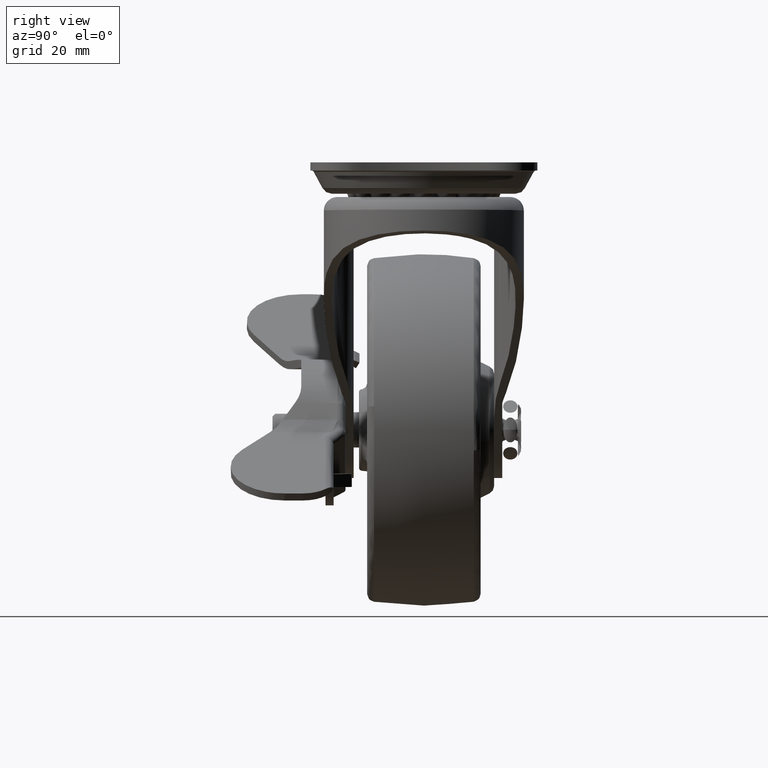
[diagram: clean part render]
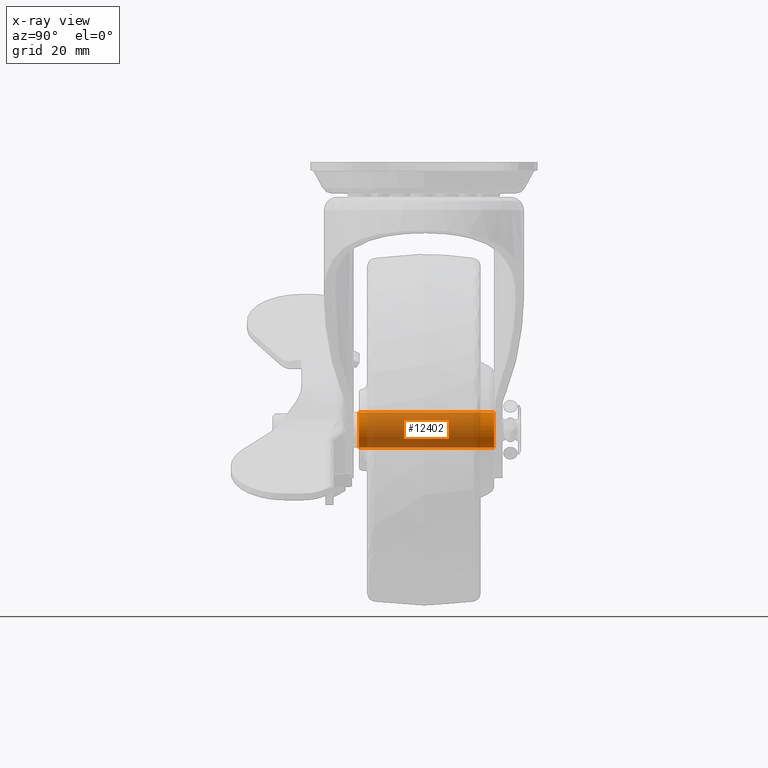
[diagram: x-ray — body ghosted, one internal face saturated and labeled with its STEP entity id]
A machine part, right view, then the same camera in x-ray: the body is ghosted and one INTERNAL B-rep face — a face not visible from any outside direction — is saturated and labeled: STEP entity #12402.
In plain terms, the highlighted face is a freeform B-spline surface patch.
Its self-contained STEP definition (entity closure, byte-faithful):
#12257=CARTESIAN_POINT('',(-26.481555839556510,13.625000000000007,-50.098657624741584));
#12258=CARTESIAN_POINT('',(-26.421493045502420,13.625000000000002,-50.169678686721184));
#12259=CARTESIAN_POINT('',(-26.357466705789928,13.625000000000000,-50.237148371004700));
#12260=CARTESIAN_POINT('',(-24.120314334785231,13.625000000000002,-52.594615076794632));
#12261=CARTESIAN_POINT('',(-21.762847628995299,13.625000000000000,-50.357462705789942));
#12262=CARTESIAN_POINT('',(-19.405380923205364,13.625000000000002,-48.120310334785238));
#12263=CARTESIAN_POINT('',(-21.642533294210072,13.625000000000000,-45.762843628995313));
#12264=CARTESIAN_POINT('',(-23.879685665214758,13.625000000000002,-43.405376923205367));
#12265=CARTESIAN_POINT('',(-26.237152371004701,13.625000000000000,-45.642529294210071));
#12266=CARTESIAN_POINT('',(-26.481555839556510,-12.640625000000000,-50.098657624741584));
#12267=CARTESIAN_POINT('',(-26.421493045502420,-12.640625000000002,-50.169678686721184));
#12268=CARTESIAN_POINT('',(-26.357466705789928,-12.640625000000000,-50.237148371004700));
#12269=CARTESIAN_POINT('',(-24.120314334785231,-12.640625000000000,-52.594615076794632));
#12270=CARTESIAN_POINT('',(-21.762847628995299,-12.640625000000000,-50.357462705789942));
#12271=CARTESIAN_POINT('',(-19.405380923205364,-12.640625000000000,-48.120310334785238));
#12272=CARTESIAN_POINT('',(-21.642533294210072,-12.640625000000000,-45.762843628995313));
#12273=CARTESIAN_POINT('',(-23.879685665214758,-12.640625000000000,-43.405376923205367));
#12274=CARTESIAN_POINT('',(-26.237152371004701,-12.640625000000000,-45.642529294210071));
#12282=(BOUNDED_SURFACE()B_SPLINE_SURFACE(2,1,((#12257,#12266),(#12258,#12267),(#12259,#12268),(#12260,#12269),(#12261,#12270),(#12262,#12271),(#12263,#12272),(#12264,#12273),(#12265,#12274)),.UNSPECIFIED.,.F.,.F.,.U.)B_SPLINE_SURFACE_WITH_KNOTS((3,2,2,2,3),(2,2),(0.0,0.215391052434010,5.600167363284247,10.984943674134490,16.369719984984719),(0.0,26.265625000000011),.UNSPECIFIED.)GEOMETRIC_REPRESENTATION_ITEM()RATIONAL_B_SPLINE_SURFACE(((0.977505800795127,0.977505800795127),(0.988284271247462,0.988284271247462),(1.0,1.0),(0.707106781186548,0.707106781186548),(1.0,1.0),(0.707106781186548,0.707106781186548),(1.0,1.0),(0.707106781186548,0.707106781186548),(1.0,1.0)))REPRESENTATION_ITEM('')SURFACE());
#12283=CARTESIAN_POINT('',(-26.481556285946748,13.000000000002050,-50.098657887644620));
#12284=VERTEX_POINT('',#12283);
#12285=CARTESIAN_POINT('',(-24.0,13.0,-51.249996000000102));
#12286=VERTEX_POINT('',#12285);
#12287=CARTESIAN_POINT('',(-26.481556285946748,13.000000000002050,-50.098657887644620));
#12288=CARTESIAN_POINT('',(-26.234824559526182,13.000000000001830,-50.390823503948837));
#12289=CARTESIAN_POINT('',(-25.751687619251712,13.000000000001471,-50.790870470828303));
#12290=CARTESIAN_POINT('',(-24.882290786734551,13.000000000000689,-51.165810737911627));
#12291=CARTESIAN_POINT('',(-24.323558798059778,13.000000000000270,-51.250151274976567));
#12292=CARTESIAN_POINT('',(-24.0,13.0,-51.249996000000102));
#12293=B_SPLINE_CURVE_WITH_KNOTS('',3,(#12287,#12288,#12289,#12290,#12291,#12292),.UNSPECIFIED.,.F.,.U.,(4,1,1,4),(0.000000054423343,1.147109767786408,1.852996211808536,2.823627262613000),.UNSPECIFIED.);
#12294=EDGE_CURVE('',#12284,#12286,#12293,.T.);
#12295=ORIENTED_EDGE('',*,*,#12294,.F.);
#12296=CARTESIAN_POINT('',(-26.481556285255721,-12.0,-50.098657888461673));
#12297=VERTEX_POINT('',#12296);
#12298=CARTESIAN_POINT('',(-26.481556285946748,13.000000000002050,-50.098657887644620));
#12299=CARTESIAN_POINT('',(-26.481556285255721,-12.0,-50.098657888461673));
#12300=QUASI_UNIFORM_CURVE('',1,(#12298,#12299),.UNSPECIFIED.,.F.,.U.);
#12301=EDGE_CURVE('',#12284,#12297,#12300,.T.);
#12302=ORIENTED_EDGE('',*,*,#12301,.T.);
#12303=CARTESIAN_POINT('',(-24.0,-12.0,-51.249996000000003));
#12304=VERTEX_POINT('',#12303);
#12305=CARTESIAN_POINT('',(-26.481556285255721,-12.0,-50.098657888461673));
#12306=CARTESIAN_POINT('',(-26.196994702160250,-12.000000000000030,-50.435937924643127));
#12307=CARTESIAN_POINT('',(-25.641381200740600,-11.999999999999980,-50.870703685043807));
#12308=CARTESIAN_POINT('',(-24.749986543510360,-12.000000000000011,-51.192000824857097));
#12309=CARTESIAN_POINT('',(-24.250010752007089,-11.999999999999989,-51.250047392190829));
#12310=CARTESIAN_POINT('',(-24.0,-12.0,-51.249996000000003));
#12311=B_SPLINE_CURVE_WITH_KNOTS('',3,(#12305,#12306,#12307,#12308,#12309,#12310),.UNSPECIFIED.,.F.,.U.,(4,1,1,4),(0.000000054424649,1.323581554199689,2.073600947817505,2.823627261542827),.UNSPECIFIED.);
#12312=EDGE_CURVE('',#12297,#12304,#12311,.T.);
#12313=ORIENTED_EDGE('',*,*,#12312,.T.);
#12314=CARTESIAN_POINT('',(-20.750000000000661,-12.0,-47.999993928805957));
#12315=VERTEX_POINT('',#12314);
#12316=CARTESIAN_POINT('',(-24.0,-12.0,-51.249996000000003));
#12317=CARTESIAN_POINT('',(-23.654320774673671,-12.000000000000020,-51.250179115008287));
#12318=CARTESIAN_POINT('',(-23.096070509166420,-11.999999999999970,-51.160053976388241));
#12319=CARTESIAN_POINT('',(-22.436602563006169,-12.000000000000030,-50.867636865759899));
#12320=CARTESIAN_POINT('',(-21.948912333431920,-11.999999999999959,-50.541772893779388));
#12321=CARTESIAN_POINT('',(-21.484482496297741,-12.000000000000069,-50.099670020211917));
#12322=CARTESIAN_POINT('',(-21.052774065843280,-11.999999999999870,-49.453728091141343));
#12323=CARTESIAN_POINT('',(-20.799715858004259,-12.000000000000220,-48.717896997388358));
#12324=CARTESIAN_POINT('',(-20.749982138097359,-11.999999999999821,-48.212695492104409));
#12325=CARTESIAN_POINT('',(-20.750000000000661,-12.0,-47.999993928805957));
#12326=B_SPLINE_CURVE_WITH_KNOTS('',3,(#12316,#12317,#12318,#12319,#12320,#12321,#12322,#12323,#12324,#12325),.UNSPECIFIED.,.F.,.U.,(4,1,1,1,1,1,1,4),(0.000000086991321,1.036990391436234,1.675165644531917,2.153791850093249,2.791894891515630,3.589599017035031,4.467092726175537,5.105217336476702),.UNSPECIFIED.);
#12327=EDGE_CURVE('',#12304,#12315,#12326,.T.);
#12328=ORIENTED_EDGE('',*,*,#12327,.T.);
#12329=CARTESIAN_POINT('',(-24.0,-12.0,-44.749996000000003));
#12330=VERTEX_POINT('',#12329);
#12331=CARTESIAN_POINT('',(-20.750000000000661,-12.0,-47.999993928805957));
#12332=CARTESIAN_POINT('',(-20.749648631418520,-12.0,-47.601095348844218));
#12333=CARTESIAN_POINT('',(-20.854088096085800,-12.000000000000011,-47.042983797080190));
#12334=CARTESIAN_POINT('',(-21.184792626607109,-12.0,-46.344060126032232));
#12335=CARTESIAN_POINT('',(-21.523204617914200,-12.000000000000030,-45.863494637384839));
#12336=CARTESIAN_POINT('',(-22.026282380703240,-11.999999999999970,-45.384468469668292));
#12337=CARTESIAN_POINT('',(-22.600739912557628,-12.000000000000041,-45.040171777657363));
#12338=CARTESIAN_POINT('',(-23.282133407029669,-11.999999999999970,-44.805790072367401));
#12339=CARTESIAN_POINT('',(-23.734111078695509,-12.000000000000020,-44.749931105186512));
#12340=CARTESIAN_POINT('',(-24.0,-12.0,-44.749996000000003));
#12341=B_SPLINE_CURVE_WITH_KNOTS('',3,(#12331,#12332,#12333,#12334,#12335,#12336,#12337,#12338,#12339,#12340),.UNSPECIFIED.,.F.,.U.,(4,1,1,1,1,1,1,4),(0.000000089837820,1.196534105289215,1.675164880495850,2.313321475636653,2.951424224352235,3.749141560874941,4.307545843119534,5.105215001699997),.UNSPECIFIED.);
#12342=EDGE_CURVE('',#12315,#12330,#12341,.T.);
#12343=ORIENTED_EDGE('',*,*,#12342,.T.);
#12344=CARTESIAN_POINT('',(-26.237152120853331,-12.0,-45.642529769683343));
#12345=VERTEX_POINT('',#12344);
#12346=CARTESIAN_POINT('',(-24.0,-12.0,-44.749996000000003));
#12347=CARTESIAN_POINT('',(-24.437013495394631,-12.000000000000011,-44.749520485583247));
#12348=CARTESIAN_POINT('',(-25.259059122995630,-12.000000000000011,-44.918541620766213));
#12349=CARTESIAN_POINT('',(-25.957656481172702,-12.0,-45.376914490278040));
#12350=CARTESIAN_POINT('',(-26.237152120853331,-12.0,-45.642529769683343));
#12351=B_SPLINE_CURVE_WITH_KNOTS('',3,(#12346,#12347,#12348,#12349,#12350),.UNSPECIFIED.,.F.,.U.,(4,1,4),(0.000000029991149,1.310863526457963,2.467517039208516),.UNSPECIFIED.);
#12352=EDGE_CURVE('',#12330,#12345,#12351,.T.);
#12353=ORIENTED_EDGE('',*,*,#12352,.T.);
#12354=CARTESIAN_POINT('',(-26.237152122104661,12.999999999998980,-45.642529770870873));
#12355=VERTEX_POINT('',#12354);
#12356=CARTESIAN_POINT('',(-26.237152122104661,12.999999999998980,-45.642529770870873));
#12357=CARTESIAN_POINT('',(-26.237152120853331,-12.0,-45.642529769683343));
#12358=QUASI_UNIFORM_CURVE('',1,(#12356,#12357),.UNSPECIFIED.,.F.,.U.);
#12359=EDGE_CURVE('',#12355,#12345,#12358,.T.);
#12360=ORIENTED_EDGE('',*,*,#12359,.F.);
#12361=CARTESIAN_POINT('',(-24.0,13.0,-44.749996000000102));
#12362=VERTEX_POINT('',#12361);
#12363=CARTESIAN_POINT('',(-24.0,13.0,-44.749996000000102));
#12364=CARTESIAN_POINT('',(-24.334160038189641,12.999999999999870,-44.749828889995747));
#12365=CARTESIAN_POINT('',(-24.873801114483332,12.999999999999559,-44.834007624241082));
#12366=CARTESIAN_POINT('',(-25.633700404385142,12.999999999999311,-45.158311700592591));
#12367=CARTESIAN_POINT('',(-26.032119926175032,12.999999999999011,-45.447842659459987));
#12368=CARTESIAN_POINT('',(-26.237152122104661,12.999999999998980,-45.642529770870873));
#12369=B_SPLINE_CURVE_WITH_KNOTS('',3,(#12363,#12364,#12365,#12366,#12367,#12368),.UNSPECIFIED.,.F.,.U.,(4,1,1,4),(0.000000029990026,1.002438335301999,1.619299787580127,2.467517040933706),.UNSPECIFIED.);
#12370=EDGE_CURVE('',#12362,#12355,#12369,.T.);
#12371=ORIENTED_EDGE('',*,*,#12370,.F.);
#12372=CARTESIAN_POINT('',(-20.750000000000661,13.0,-47.999993928806063));
#12373=VERTEX_POINT('',#12372);
#12374=CARTESIAN_POINT('',(-20.750000000000661,13.0,-47.999993928806063));
#12375=CARTESIAN_POINT('',(-20.749975908047720,13.0,-47.787291483072913));
#12376=CARTESIAN_POINT('',(-20.794530873803449,13.000000000000011,-47.335287255801603));
#12377=CARTESIAN_POINT('',(-21.028696234870409,13.0,-46.595648949467609));
#12378=CARTESIAN_POINT('',(-21.445712056079980,13.000000000000011,-45.937121188372053));
#12379=CARTESIAN_POINT('',(-21.948922969068850,13.000000000000011,-45.458226272272682));
#12380=CARTESIAN_POINT('',(-22.436599475681280,13.000000000000011,-45.132349122710103));
#12381=CARTESIAN_POINT('',(-23.096073863425701,13.000000000000041,-44.839940944796311));
#12382=CARTESIAN_POINT('',(-23.654320086197231,12.999999999999931,-44.749810749153497));
#12383=CARTESIAN_POINT('',(-24.0,13.0,-44.749996000000102));
#12384=B_SPLINE_CURVE_WITH_KNOTS('',3,(#12374,#12375,#12376,#12377,#12378,#12379,#12380,#12381,#12382,#12383),.UNSPECIFIED.,.F.,.U.,(4,1,1,1,1,1,1,4),(0.000000089833362,0.638124408292164,1.356073530273523,2.313321475635327,2.951424224351419,3.430050210045568,4.068225171381677,5.105215001700037),.UNSPECIFIED.);
#12385=EDGE_CURVE('',#12373,#12362,#12384,.T.);
#12386=ORIENTED_EDGE('',*,*,#12385,.F.);
#12387=CARTESIAN_POINT('',(-24.0,13.0,-51.249996000000102));
#12388=CARTESIAN_POINT('',(-23.787301097988109,13.000000000000011,-51.249999264637189));
#12389=CARTESIAN_POINT('',(-23.282083158749849,13.0,-51.200315996239247));
#12390=CARTESIAN_POINT('',(-22.597036509819102,13.000000000000011,-50.964630256181223));
#12391=CARTESIAN_POINT('',(-21.987604048321490,13.000000000000020,-50.578631821493573));
#12392=CARTESIAN_POINT('',(-21.484484351458960,13.0,-50.099656821503586));
#12393=CARTESIAN_POINT('',(-21.127277777700279,13.0,-49.565091038289737));
#12394=CARTESIAN_POINT('',(-20.831398755528049,13.000000000000020,-48.850721493017573));
#12395=CARTESIAN_POINT('',(-20.749804828642159,12.999999999999980,-48.345684038266207));
#12396=CARTESIAN_POINT('',(-20.750000000000661,13.0,-47.999993928806063));
#12397=B_SPLINE_CURVE_WITH_KNOTS('',3,(#12387,#12388,#12389,#12390,#12391,#12392,#12393,#12394,#12395,#12396),.UNSPECIFIED.,.F.,.U.,(4,1,1,1,1,1,1,4),(0.000000086994829,0.638124697676401,1.515618407344818,2.153791850094874,2.791894891516761,3.589599017035727,4.068227032823577,5.105217336476685),.UNSPECIFIED.);
#12398=EDGE_CURVE('',#12286,#12373,#12397,.T.);
#12399=ORIENTED_EDGE('',*,*,#12398,.F.);
#12400=EDGE_LOOP('',(#12295,#12302,#12313,#12328,#12343,#12353,#12360,#12371,#12386,#12399));
#12401=FACE_OUTER_BOUND('',#12400,.T.);
#12402=ADVANCED_FACE('',(#12401),#12282,.F.);